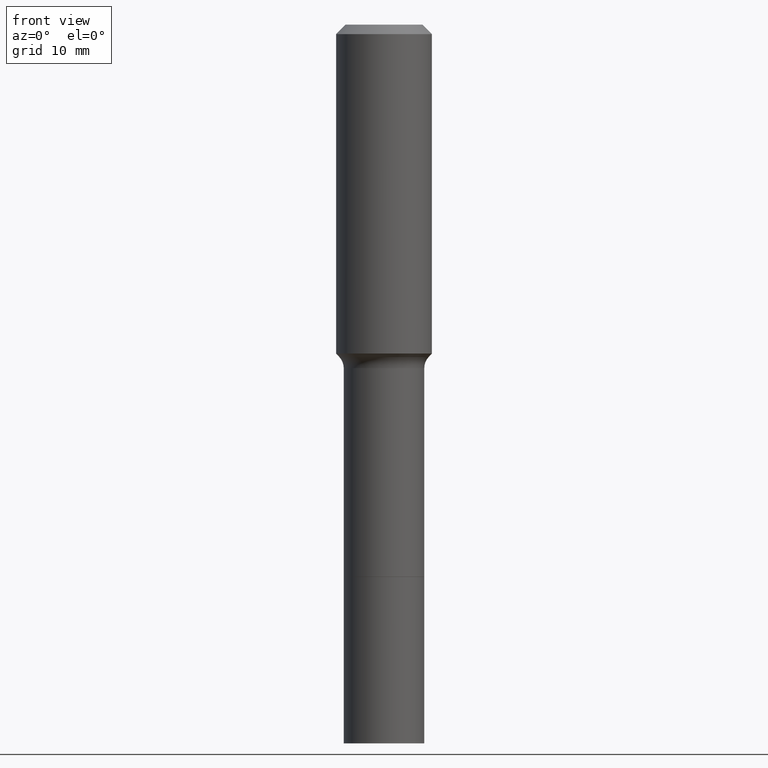
[diagram: clean part render]
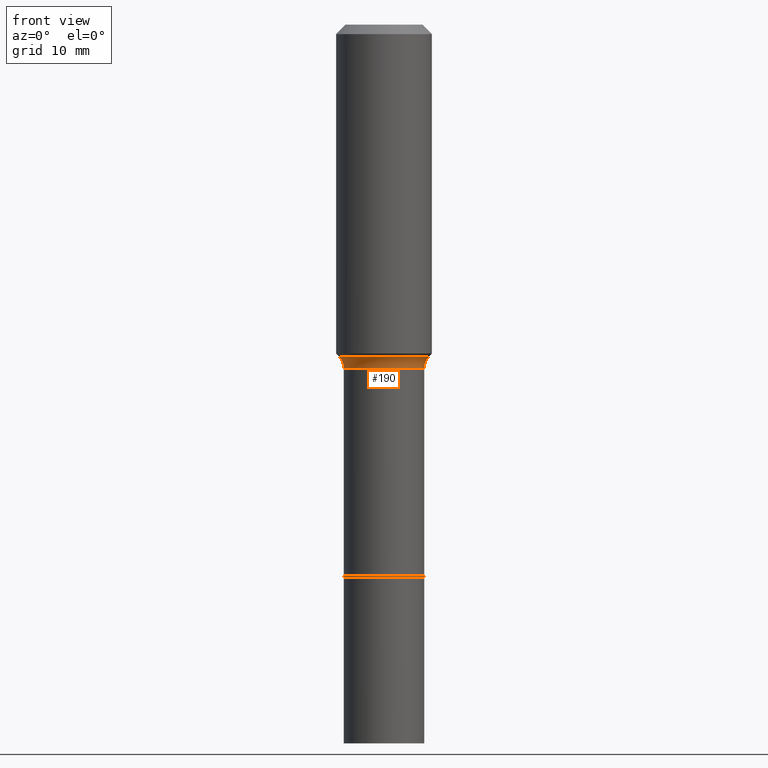
[diagram: same view with one face highlighted and labeled with its STEP entity id]
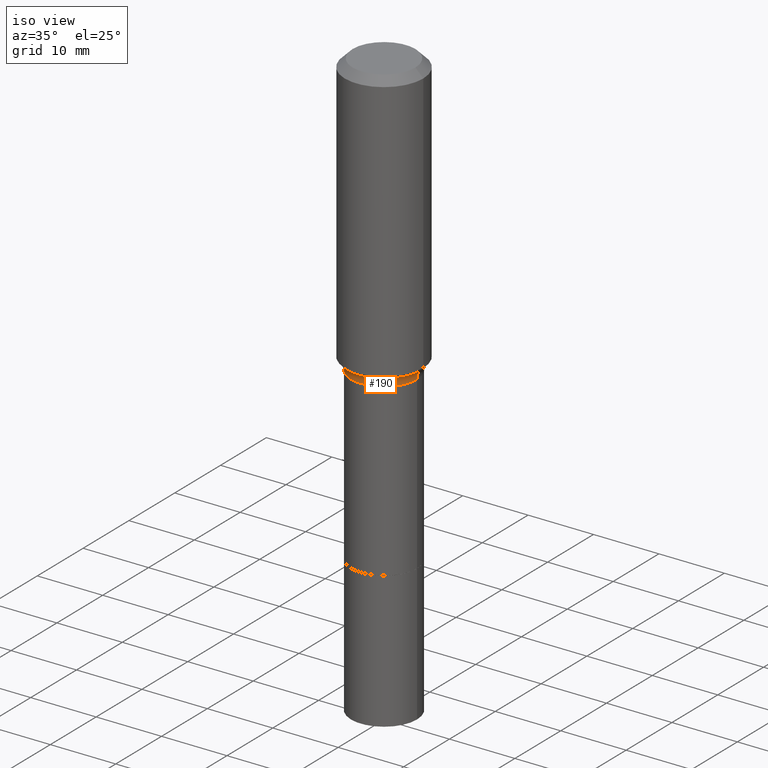
[diagram: same view with one face highlighted and labeled with its STEP entity id]
A machine part, front view. The second image highlights one B-rep face of the part: STEP entity #190.
A second angle (iso view) of the same face is appended — the face is thin or edge-on in the first view.
In plain terms, the highlighted toroidal blend (fillet) surface has major radius 7.0739 mm and minor (blend) radius 2.032 mm.
Its self-contained STEP definition (entity closure, byte-faithful):
#13 = DIRECTION ( 'NONE',  ( -1.000000000000000000, 7.105427357601001859E-15, 0.000000000000000000 ) ) ;
#14 = VERTEX_POINT ( 'NONE', #442 ) ;
#19 = CIRCLE ( 'NONE', #243, 0.07999999999999996003 ) ;
#21 = CARTESIAN_POINT ( 'NONE',  ( 0.2784999999999999143, -7.856880456798722673E-15, -1.693299999999999583 ) ) ;
#32 = EDGE_LOOP ( 'NONE', ( #295, #371, #104, #406 ) ) ;
#55 = VERTEX_POINT ( 'NONE', #139 ) ;
#83 = DIRECTION ( 'NONE',  ( 1.000000000000000000, -6.982962677686265133E-15, 0.000000000000000000 ) ) ;
#104 = ORIENTED_EDGE ( 'NONE', *, *, #500, .T. ) ;
#125 = CARTESIAN_POINT ( 'NONE',  ( 4.140912329513291253E-29, -5.912125351063097489E-15, -1.693299999999999583 ) ) ;
#130 = DIRECTION ( 'NONE',  ( -2.445468806185136597E-29, 3.491481338843145583E-15, 1.000000000000000000 ) ) ;
#139 = CARTESIAN_POINT ( 'NONE',  ( -0.2199917038704659877, -4.158495516154243178E-15, -1.638740131195000060 ) ) ;
#141 = VERTEX_POINT ( 'NONE', #211 ) ;
#143 = DIRECTION ( 'NONE',  ( -6.982962677686266711E-15, -1.000000000000000000, 3.491481338843145583E-15 ) ) ;
#172 = EDGE_CURVE ( 'NONE', #55, #14, #19, .T. ) ;
#183 = VERTEX_POINT ( 'NONE', #473 ) ;
#190 = ADVANCED_FACE ( 'NONE', ( #293 ), #433, .F. ) ;
#192 = AXIS2_PLACEMENT_3D ( 'NONE', #216, #254, #247 ) ;
#211 = CARTESIAN_POINT ( 'NONE',  ( 0.2199917038704659877, -7.257824444808784906E-15, -1.638740131195000060 ) ) ;
#216 = CARTESIAN_POINT ( 'NONE',  ( 4.140912329513291253E-29, -5.912125351063097489E-15, -1.693299999999999583 ) ) ;
#243 = AXIS2_PLACEMENT_3D ( 'NONE', #320, #479, #13 ) ;
#247 = DIRECTION ( 'NONE',  ( 1.000000000000000000, -6.982962677686265922E-15, 4.883557194083112901E-29 ) ) ;
#254 = DIRECTION ( 'NONE',  ( -2.445468806185136597E-29, 3.491481338843145583E-15, 1.000000000000000000 ) ) ;
#268 = CARTESIAN_POINT ( 'NONE',  ( 4.007487872281110922E-29, -5.721630587280711006E-15, -1.638740131195000060 ) ) ;
#293 = FACE_OUTER_BOUND ( 'NONE', #32, .T. ) ;
#295 = ORIENTED_EDGE ( 'NONE', *, *, #390, .F. ) ;
#320 = CARTESIAN_POINT ( 'NONE',  ( -0.2784999999999999143, -3.933263831971218686E-15, -1.693299999999999583 ) ) ;
#367 = AXIS2_PLACEMENT_3D ( 'NONE', #268, #369, #419 ) ;
#369 = DIRECTION ( 'NONE',  ( -2.445468806185136597E-29, 3.491481338843145583E-15, 1.000000000000000000 ) ) ;
#371 = ORIENTED_EDGE ( 'NONE', *, *, #172, .T. ) ;
#381 = EDGE_CURVE ( 'NONE', #141, #183, #466, .T. ) ;
#390 = EDGE_CURVE ( 'NONE', #55, #141, #499, .T. ) ;
#406 = ORIENTED_EDGE ( 'NONE', *, *, #381, .F. ) ;
#419 = DIRECTION ( 'NONE',  ( 1.000000000000000000, -6.982962677686269077E-15, 0.000000000000000000 ) ) ;
#433 = TOROIDAL_SURFACE ( 'NONE', #192, 0.2784999999999999143, 0.07999999999999996003 ) ;
#434 = AXIS2_PLACEMENT_3D ( 'NONE', #21, #143, #451 ) ;
#442 = CARTESIAN_POINT ( 'NONE',  ( -0.1984999999999998987, -6.297192299079385574E-15, -1.693299999999999583 ) ) ;
#451 = DIRECTION ( 'NONE',  ( 1.000000000000000000, -6.982962677686262766E-15, 0.000000000000000000 ) ) ;
#466 = CIRCLE ( 'NONE', #434, 0.07999999999999996003 ) ;
#473 = CARTESIAN_POINT ( 'NONE',  ( 0.1984999999999998987, -7.298243442583821021E-15, -1.693299999999999583 ) ) ;
#479 = DIRECTION ( 'NONE',  ( 7.105427357601001859E-15, 1.000000000000000000, -3.491481338843145583E-15 ) ) ;
#492 = CIRCLE ( 'NONE', #517, 0.1984999999999998987 ) ;
#499 = CIRCLE ( 'NONE', #367, 0.2199917038704659877 ) ;
#500 = EDGE_CURVE ( 'NONE', #14, #183, #492, .T. ) ;
#517 = AXIS2_PLACEMENT_3D ( 'NONE', #125, #130, #83 ) ;